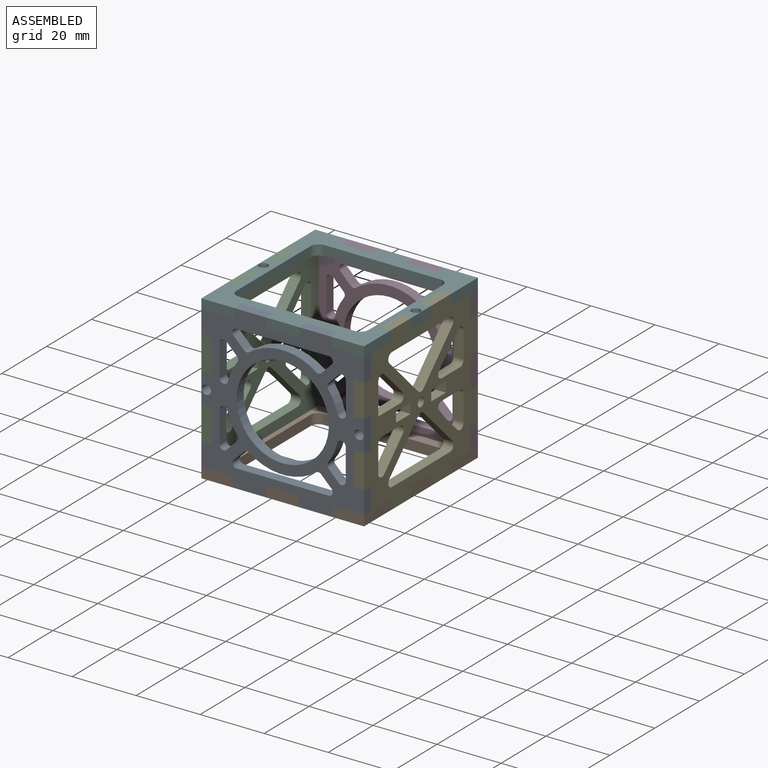
[diagram: assembled view]
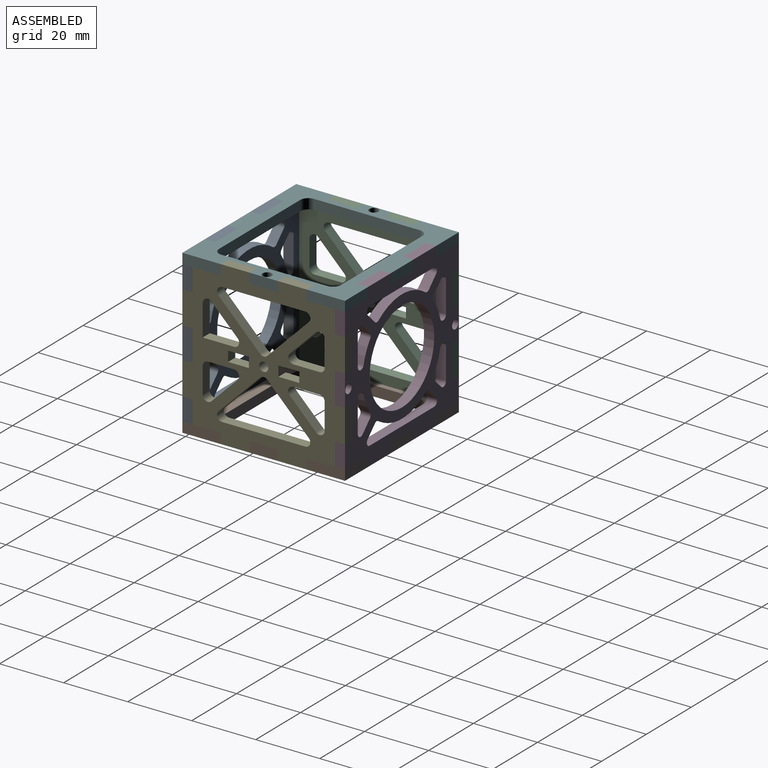
[diagram: assembled view, second angle]
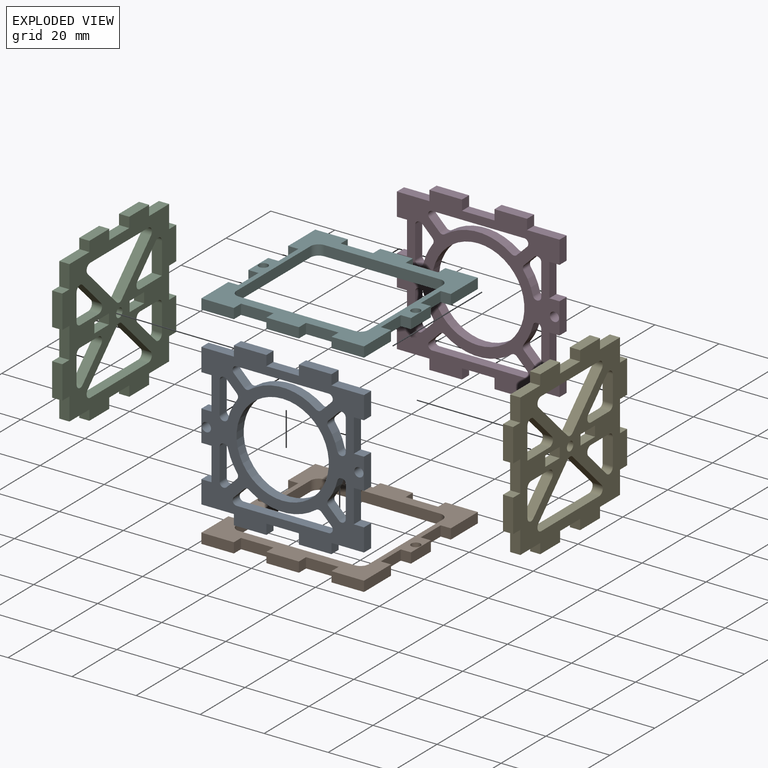
[diagram: exploded view]
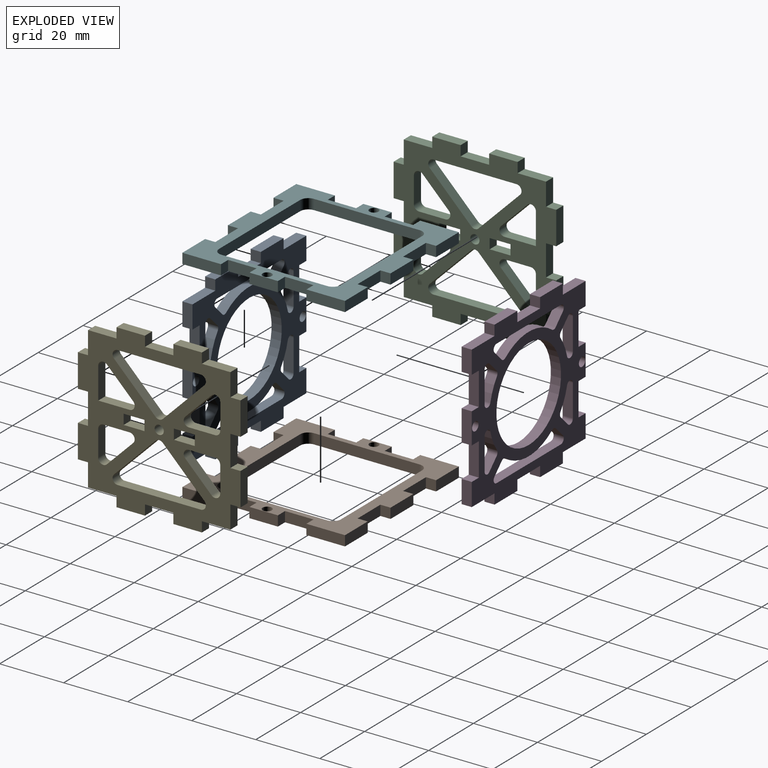
[diagram: exploded view, second angle]
ASSEMBLY  parts=6 mates=5
PART A: 89 faces, bbox 50.8x3.2x50.8 mm
  f0: cylinder r=17.59mm len=6.26mm, axis (0,1,0), area 22.1mm2, adj f63,f64,f82,f87
  f1: plane 3.21x3.21mm, normal (0.71,0,-0.71), area 14.4mm2, adj f63,f64,f82,f83
  f2: plane 9.93x3.18mm, normal (-1,0,0), area 31.5mm2, adj f63,f64,f83,f84
  f3: plane 3.21x3.21mm, normal (-0.71,0,0.71), area 14.4mm2, adj f63,f64,f80,f81
  f4: cylinder r=17.59mm len=20.82mm, axis (0,1,0), area 70.7mm2, adj f63,f64,f78,f81
  f5: plane 3.21x3.21mm, normal (0.71,0,0.71), area 14.4mm2, adj f63,f64,f78,f79
  f6: plane 3.18x0.09mm, normal (0,0,1), area 0.3mm2, adj f63,f64,f75,f86
  f7: plane 9.93x3.18mm, normal (1,0,0), area 31.5mm2, adj f63,f64,f75,f76
  f8: plane 3.21x3.21mm, normal (-0.71,0,-0.71), area 14.4mm2, adj f63,f64,f76,f77
  f9: plane 3.18x0.09mm, normal (0,0,-1), area 0.3mm2, adj f63,f64,f69,f88
  f10: plane 9.93x3.18mm, normal (-1,0,0), area 31.5mm2, adj f63,f64,f69,f70
  f11: plane 3.21x3.21mm, normal (0.71,0,0.71), area 14.4mm2, adj f63,f64,f70,f71
  f12: plane 9.93x3.18mm, normal (1,0,0), area 31.5mm2, adj f63,f64,f67,f68
  f13: plane 3.18x0.09mm, normal (0,0,-1), area 0.3mm2, adj f63,f64,f68,f85
  f14: cylinder r=17.59mm len=6.26mm, axis (0,1,0), area 22.1mm2, adj f63,f64,f66,f85
  f15: plane 3.21x3.21mm, normal (0.71,0,-0.71), area 14.4mm2, adj f63,f64,f65,f74
  f16: cylinder r=17.59mm len=20.82mm, axis (0,1,0), area 70.7mm2, adj f63,f64,f65,f72
  f17: plane 3.21x3.21mm, normal (-0.71,0,-0.71), area 14.4mm2, adj f63,f64,f72,f73
  f18: plane 10.16x3.18mm, normal (0,0,-1), area 32.3mm2, adj f19,f61,f63,f64
  f19: plane 3.18x3.18mm, normal (1,0,0), area 10.1mm2, adj f18,f20,f63,f64
  f20: plane 10.16x3.18mm, normal (0,0,-1), area 32.3mm2, adj f19,f21,f63,f64
  f21: plane 3.18x3.18mm, normal (-1,0,0), area 10.1mm2, adj f20,f22,f63,f64
  f22: plane 10.16x3.18mm, normal (0,0,-1), area 32.3mm2, adj f21,f23,f63,f64
  f23: plane 3.18x3.18mm, normal (1,0,0), area 10.1mm2, adj f22,f24,f63,f64
  f24: plane 10.16x3.18mm, normal (0,0,-1), area 32.3mm2, adj f23,f25,f63,f64
  f25: plane 7.11x3.18mm, normal (1,0,0), area 22.6mm2, adj f24,f26,f63,f64
  f26: plane 3.18x3.18mm, normal (0,0,1), area 10.1mm2, adj f25,f27,f63,f64
  f27: plane 10.29x3.18mm, normal (1,0,0), area 32.7mm2, adj f26,f28,f63,f64
  f28: plane 3.18x3.18mm, normal (0,0,-1), area 10.1mm2, adj f27,f29,f63,f64
  f29: plane 9.65x3.18mm, normal (1,0,0), area 30.6mm2, adj f28,f30,f63,f64
  f30: plane 3.18x3.18mm, normal (0,0,1), area 10.1mm2, adj f29,f31,f63,f64
  f31: plane 10.29x3.18mm, normal (1,0,0), area 32.7mm2, adj f30,f32,f63,f64
  f32: plane 3.18x3.18mm, normal (0,0,-1), area 10.1mm2, adj f31,f33,f63,f64
  f33: plane 7.11x3.18mm, normal (1,0,0), area 22.6mm2, adj f32,f34,f63,f64
  f34: plane 10.16x3.18mm, normal (0,0,1), area 32.3mm2, adj f33,f35,f63,f64
  f35: plane 3.18x3.18mm, normal (1,0,0), area 10.1mm2, adj f34,f36,f63,f64
  f36: plane 10.16x3.18mm, normal (0,0,1), area 32.3mm2, adj f35,f37,f63,f64
  f37: plane 3.18x3.18mm, normal (-1,0,0), area 10.1mm2, adj f36,f38,f63,f64
  f38: plane 10.16x3.18mm, normal (0,0,1), area 32.3mm2, adj f37,f39,f63,f64
  f39: plane 3.18x3.18mm, normal (1,0,0), area 10.1mm2, adj f38,f40,f63,f64
  f40: plane 10.16x3.18mm, normal (0,0,1), area 32.3mm2, adj f39,f41,f63,f64
  f41: plane 3.18x3.18mm, normal (-1,0,0), area 10.1mm2, adj f40,f42,f63,f64
  f42: plane 10.16x3.18mm, normal (0,0,1), area 32.3mm2, adj f41,f43,f63,f64
  f43: plane 7.11x3.18mm, normal (-1,0,0), area 22.6mm2, adj f42,f44,f63,f64
  f44: plane 3.18x3.18mm, normal (0,0,-1), area 10.1mm2, adj f43,f45,f63,f64
  f45: plane 10.29x3.18mm, normal (-1,0,0), area 32.7mm2, adj f44,f46,f63,f64
  f46: plane 3.18x3.18mm, normal (0,0,1), area 10.1mm2, adj f45,f47,f63,f64
  f47: plane 9.65x3.18mm, normal (-1,0,0), area 30.6mm2, adj f46,f48,f63,f64
  f48: plane 3.18x3.18mm, normal (0,0,-1), area 10.1mm2, adj f47,f49,f63,f64
  f49: plane 10.29x3.18mm, normal (-1,0,0), area 32.7mm2, adj f48,f50,f63,f64
  f50: plane 3.18x3.18mm, normal (0,0,1), area 10.1mm2, adj f49,f51,f63,f64
  f51: plane 7.11x3.18mm, normal (-1,0,0), area 22.6mm2, adj f50,f52,f63,f64
  f52: plane 10.16x3.18mm, normal (0,0,-1), area 32.3mm2, adj f51,f61,f63,f64
  f53: cylinder r=14.41mm len=28.83mm, axis (0,1,0), area 287.6mm2, adj f63,f64
  f54: cylinder r=1.43mm len=3.18mm, axis (0,1,0), area 28.5mm2, adj f63,f64
  f55: plane 3.18x0.09mm, normal (0,0,1), area 0.3mm2, adj f63,f64,f84,f87
  f56: plane 28.75x3.18mm, normal (0,0,-1), area 91.3mm2, adj f63,f64,f79,f80
  f57: cylinder r=17.59mm len=6.26mm, axis (0,1,0), area 22.1mm2, adj f63,f64,f77,f86
  f58: cylinder r=17.59mm len=6.26mm, axis (0,1,0), area 22.1mm2, adj f63,f64,f71,f88
  f59: plane 3.21x3.21mm, normal (-0.71,0,0.71), area 14.4mm2, adj f63,f64,f66,f67
  f60: plane 28.75x3.18mm, normal (0,0,1), area 91.3mm2, adj f63,f64,f73,f74
  f61: plane 3.18x3.18mm, normal (-1,0,0), area 10.1mm2, adj f18,f52,f63,f64
  f62: cylinder r=1.43mm len=3.18mm, axis (0,1,0), area 28.5mm2, adj f63,f64
  f63: plane 50.8x50.8mm, normal (0,-1,0), area 1181mm2, adj f0,f1,f2,f3,f4,f5,f6,f7
  f64: plane 50.8x50.8mm, normal (0,1,0), area 1181mm2, adj f0,f1,f2,f3,f4,f5,f6,f7
  f65: cylinder r=1.27mm len=3.18mm, axis (0,1,0), area 5.7mm2, adj f15,f16,f63,f64
  f66: cylinder r=1.27mm len=3.18mm, axis (0,1,0), area 5.7mm2, adj f14,f59,f63,f64
  f67: cylinder r=1.27mm len=3.18mm, axis (0,-1,0), area 9.5mm2, adj f12,f59,f63,f64
  f68: cylinder r=1.27mm len=3.18mm, axis (0,1,0), area 6.3mm2, adj f12,f13,f63,f64
  f69: cylinder r=1.27mm len=3.18mm, axis (0,-1,0), area 6.3mm2, adj f9,f10,f63,f64
  f70: cylinder r=1.27mm len=3.18mm, axis (0,-1,0), area 9.5mm2, adj f10,f11,f63,f64
  f71: cylinder r=1.27mm len=3.18mm, axis (0,1,0), area 5.7mm2, adj f11,f58,f63,f64
  f72: cylinder r=1.27mm len=3.18mm, axis (0,1,0), area 5.7mm2, adj f16,f17,f63,f64
  f73: cylinder r=1.27mm len=3.18mm, axis (0,-1,0), area 9.5mm2, adj f17,f60,f63,f64
  f74: cylinder r=1.27mm len=3.18mm, axis (0,-1,0), area 9.5mm2, adj f15,f60,f63,f64
  f75: cylinder r=1.27mm len=3.18mm, axis (0,-1,0), area 6.3mm2, adj f6,f7,f63,f64
  f76: cylinder r=1.27mm len=3.18mm, axis (0,-1,0), area 9.5mm2, adj f7,f8,f63,f64
  f77: cylinder r=1.27mm len=3.18mm, axis (0,1,0), area 5.7mm2, adj f8,f57,f63,f64
  f78: cylinder r=1.27mm len=3.18mm, axis (0,1,0), area 5.7mm2, adj f4,f5,f63,f64
  f79: cylinder r=1.27mm len=3.18mm, axis (0,-1,0), area 9.5mm2, adj f5,f56,f63,f64
  f80: cylinder r=1.27mm len=3.18mm, axis (0,-1,0), area 9.5mm2, adj f3,f56,f63,f64
  f81: cylinder r=1.27mm len=3.18mm, axis (0,1,0), area 5.7mm2, adj f3,f4,f63,f64
  f82: cylinder r=1.27mm len=3.18mm, axis (0,1,0), area 5.7mm2, adj f0,f1,f63,f64
  f83: cylinder r=1.27mm len=3.18mm, axis (0,-1,0), area 9.5mm2, adj f1,f2,f63,f64
  f84: cylinder r=1.27mm len=3.18mm, axis (0,1,0), area 6.3mm2, adj f2,f55,f63,f64
  f85: cylinder r=1.27mm len=3.18mm, axis (0,1,0), area 5.4mm2, adj f13,f14,f63,f64
  f86: cylinder r=1.27mm len=3.18mm, axis (0,1,0), area 5.4mm2, adj f6,f57,f63,f64
  f87: cylinder r=1.27mm len=3.18mm, axis (0,1,0), area 5.4mm2, adj f0,f55,f63,f64
  f88: cylinder r=1.27mm len=3.18mm, axis (0,1,0), area 5.4mm2, adj f9,f58,f63,f64
PART B: 48 faces, bbox 50.8x50.8x3.2 mm
  f0: plane 36.2x3.18mm, normal (0,-1,0), area 114.9mm2, adj f42,f43,f44,f47
  f1: plane 33.02x3.18mm, normal (-1,0,0), area 104.8mm2, adj f42,f43,f44,f45
  f2: plane 36.2x3.18mm, normal (0,1,0), area 114.9mm2, adj f42,f43,f45,f46
  f3: plane 10.16x3.18mm, normal (0,1,0), area 32.3mm2, adj f4,f40,f42,f43
  f4: plane 12.07x3.18mm, normal (-1,0,0), area 38.3mm2, adj f3,f5,f42,f43
  f5: plane 3.18x3.18mm, normal (0,-1,0), area 10.1mm2, adj f4,f6,f42,f43
  f6: plane 8.89x3.18mm, normal (-1,0,0), area 28.2mm2, adj f5,f7,f42,f43
  f7: plane 3.18x3.18mm, normal (0,1,0), area 10.1mm2, adj f6,f8,f42,f43
  f8: plane 8.89x3.18mm, normal (-1,0,0), area 28.2mm2, adj f7,f9,f42,f43
  f9: plane 3.18x3.18mm, normal (0,-1,0), area 10.1mm2, adj f8,f10,f42,f43
  f10: plane 8.89x3.18mm, normal (-1,0,0), area 28.2mm2, adj f9,f11,f42,f43
  f11: plane 3.18x3.18mm, normal (0,1,0), area 10.1mm2, adj f10,f12,f42,f43
  f12: plane 12.07x3.18mm, normal (-1,0,0), area 38.3mm2, adj f11,f13,f42,f43
  f13: plane 10.16x3.18mm, normal (0,-1,0), area 32.3mm2, adj f12,f14,f42,f43
  f14: plane 3.18x3.18mm, normal (1,0,0), area 10.1mm2, adj f13,f15,f42,f43
  f15: plane 10.16x3.18mm, normal (0,-1,0), area 32.3mm2, adj f14,f16,f42,f43
  f16: plane 3.18x3.18mm, normal (-1,0,0), area 10.1mm2, adj f15,f17,f42,f43
  f17: plane 10.16x3.18mm, normal (0,-1,0), area 32.3mm2, adj f16,f18,f42,f43
  f18: plane 3.18x3.18mm, normal (1,0,0), area 10.1mm2, adj f17,f19,f42,f43
  f19: plane 10.16x3.18mm, normal (0,-1,0), area 32.3mm2, adj f18,f20,f42,f43
  f20: plane 3.18x3.18mm, normal (-1,0,0), area 10.1mm2, adj f19,f21,f42,f43
  f21: plane 10.16x3.18mm, normal (0,-1,0), area 32.3mm2, adj f20,f22,f42,f43
  f22: plane 12.07x3.18mm, normal (1,0,0), area 38.3mm2, adj f21,f23,f42,f43
  f23: plane 3.18x3.18mm, normal (0,1,0), area 10.1mm2, adj f22,f24,f42,f43
  f24: plane 8.89x3.18mm, normal (1,0,0), area 28.2mm2, adj f23,f25,f42,f43
  f25: plane 3.18x3.18mm, normal (0,-1,0), area 10.1mm2, adj f24,f26,f42,f43
  f26: plane 8.89x3.18mm, normal (1,0,0), area 28.2mm2, adj f25,f27,f42,f43
  f27: plane 3.18x3.18mm, normal (0,1,0), area 10.1mm2, adj f26,f28,f42,f43
  f28: plane 8.89x3.18mm, normal (1,0,0), area 28.2mm2, adj f27,f29,f42,f43
  f29: plane 3.18x3.18mm, normal (0,-1,0), area 10.1mm2, adj f28,f30,f42,f43
  f30: plane 12.07x3.18mm, normal (1,0,0), area 38.3mm2, adj f29,f31,f42,f43
  f31: plane 10.16x3.18mm, normal (0,1,0), area 32.3mm2, adj f30,f32,f42,f43
  f32: plane 3.18x3.18mm, normal (-1,0,0), area 10.1mm2, adj f31,f33,f42,f43
  f33: plane 10.16x3.18mm, normal (0,1,0), area 32.3mm2, adj f32,f34,f42,f43
  f34: plane 3.18x3.18mm, normal (1,0,0), area 10.1mm2, adj f33,f35,f42,f43
  f35: plane 10.16x3.18mm, normal (0,1,0), area 32.3mm2, adj f34,f36,f42,f43
  f36: plane 3.18x3.18mm, normal (-1,0,0), area 10.1mm2, adj f35,f37,f42,f43
  f37: plane 10.16x3.18mm, normal (0,1,0), area 32.3mm2, adj f36,f40,f42,f43
  f38: plane 33.02x3.18mm, normal (1,0,0), area 104.8mm2, adj f42,f43,f46,f47
  f39: cylinder r=1.43mm len=3.18mm, axis (0,0,-1), area 28.5mm2, adj f42,f43
  f40: plane 3.18x3.18mm, normal (1,0,0), area 10.1mm2, adj f3,f37,f42,f43
  f41: cylinder r=1.43mm len=3.18mm, axis (0,0,-1), area 28.5mm2, adj f42,f43
  f42: plane 50.8x50.8mm, normal (0,0,1), area 758.8mm2, adj f0,f1,f2,f3,f4,f5,f6,f7
  f43: plane 50.8x50.8mm, normal (0,0,-1), area 758.8mm2, adj f0,f1,f2,f3,f4,f5,f6,f7
  f44: cylinder r=2.54mm len=3.18mm, axis (0,0,-1), area 12.7mm2, adj f0,f1,f42,f43
  f45: cylinder r=2.54mm len=3.18mm, axis (0,0,1), area 12.7mm2, adj f1,f2,f42,f43
  f46: cylinder r=2.54mm len=3.18mm, axis (0,0,-1), area 12.7mm2, adj f2,f38,f42,f43
  f47: cylinder r=2.54mm len=3.18mm, axis (0,0,1), area 12.7mm2, adj f0,f38,f42,f43
PART C: 82 faces, bbox 3.2x50.8x50.8 mm
  f0: plane 3.18x3.18mm, normal (0,1,0), area 10.1mm2, adj f1,f62,f63,f64
  f1: plane 6.51x3.18mm, normal (0,0,-1), area 20.7mm2, adj f0,f2,f63,f64
  f2: plane 3.18x3.18mm, normal (0,-1,0), area 10.1mm2, adj f1,f62,f63,f64
  f3: plane 8.21x8.21mm, normal (0,0.71,-0.71), area 36.9mm2, adj f63,f64,f80,f81
  f4: plane 9.8x3.18mm, normal (0,-1,0), area 31.1mm2, adj f53,f63,f64,f80
  f5: plane 8.21x3.18mm, normal (0,0,-1), area 26.1mm2, adj f63,f64,f77,f79
  f6: plane 8.21x8.21mm, normal (0,-0.71,0.71), area 36.9mm2, adj f63,f64,f77,f78
  f7: plane 12.97x12.97mm, normal (0,-0.71,0.71), area 58.2mm2, adj f63,f64,f74,f76
  f8: plane 12.97x12.97mm, normal (0,0.71,0.71), area 58.2mm2, adj f63,f64,f74,f75
  f9: plane 12.97x12.97mm, normal (0,-0.71,-0.71), area 58.2mm2, adj f63,f64,f71,f73
  f10: plane 25.94x3.18mm, normal (0,0,1), area 82.4mm2, adj f63,f64,f71,f72
  f11: plane 8.21x3.18mm, normal (0,-1,0), area 26.1mm2, adj f63,f64,f68,f70
  f12: plane 8.21x8.21mm, normal (0,0.71,0.71), area 36.9mm2, adj f63,f64,f68,f69
  f13: plane 8.21x3.18mm, normal (0,1,0), area 26.1mm2, adj f63,f64,f65,f67
  f14: plane 8.21x8.21mm, normal (0,-0.71,-0.71), area 36.9mm2, adj f63,f64,f65,f66
  f15: plane 6.51x3.18mm, normal (0,0,-1), area 20.7mm2, adj f16,f60,f63,f64
  f16: plane 3.18x3.18mm, normal (0,-1,0), area 10.1mm2, adj f15,f17,f63,f64
  f17: plane 6.51x3.18mm, normal (0,0,1), area 20.7mm2, adj f16,f60,f63,f64
  f18: plane 3.18x3.18mm, normal (0,1,0), area 10.1mm2, adj f19,f61,f63,f64
  f19: plane 8.89x3.18mm, normal (0,0,-1), area 28.2mm2, adj f18,f20,f63,f64
  f20: plane 7.11x3.18mm, normal (0,1,0), area 22.6mm2, adj f19,f21,f63,f64
  f21: plane 3.18x3.18mm, normal (0,0,-1), area 10.1mm2, adj f20,f22,f63,f64
  f22: plane 10.29x3.18mm, normal (0,1,0), area 32.7mm2, adj f21,f23,f63,f64
  f23: plane 3.18x3.18mm, normal (0,0,1), area 10.1mm2, adj f22,f24,f63,f64
  f24: plane 9.65x3.18mm, normal (0,1,0), area 30.6mm2, adj f23,f25,f63,f64
  f25: plane 3.18x3.18mm, normal (0,0,-1), area 10.1mm2, adj f24,f26,f63,f64
  f26: plane 10.29x3.18mm, normal (0,1,0), area 32.7mm2, adj f25,f27,f63,f64
  f27: plane 3.18x3.18mm, normal (0,0,1), area 10.1mm2, adj f26,f28,f63,f64
  f28: plane 7.11x3.18mm, normal (0,1,0), area 22.6mm2, adj f27,f29,f63,f64
  f29: plane 8.89x3.18mm, normal (0,0,1), area 28.2mm2, adj f28,f30,f63,f64
  f30: plane 3.18x3.18mm, normal (0,1,0), area 10.1mm2, adj f29,f31,f63,f64
  f31: plane 8.89x3.18mm, normal (0,0,1), area 28.2mm2, adj f30,f32,f63,f64
  f32: plane 3.18x3.18mm, normal (0,-1,0), area 10.1mm2, adj f31,f33,f63,f64
  f33: plane 8.89x3.18mm, normal (0,0,1), area 28.2mm2, adj f32,f34,f63,f64
  f34: plane 3.18x3.18mm, normal (0,1,0), area 10.1mm2, adj f33,f35,f63,f64
  f35: plane 8.89x3.18mm, normal (0,0,1), area 28.2mm2, adj f34,f36,f63,f64
  f36: plane 3.18x3.18mm, normal (0,-1,0), area 10.1mm2, adj f35,f37,f63,f64
  f37: plane 8.89x3.18mm, normal (0,0,1), area 28.2mm2, adj f36,f38,f63,f64
  f38: plane 7.11x3.18mm, normal (0,-1,0), area 22.6mm2, adj f37,f39,f63,f64
  f39: plane 3.18x3.18mm, normal (0,0,1), area 10.1mm2, adj f38,f40,f63,f64
  f40: plane 10.29x3.18mm, normal (0,-1,0), area 32.7mm2, adj f39,f41,f63,f64
  f41: plane 3.18x3.18mm, normal (0,0,-1), area 10.1mm2, adj f40,f42,f63,f64
  f42: plane 9.65x3.18mm, normal (0,-1,0), area 30.6mm2, adj f41,f43,f63,f64
  f43: plane 3.18x3.18mm, normal (0,0,1), area 10.1mm2, adj f42,f44,f63,f64
  f44: plane 10.29x3.18mm, normal (0,-1,0), area 32.7mm2, adj f43,f45,f63,f64
  f45: plane 3.18x3.18mm, normal (0,0,-1), area 10.1mm2, adj f44,f46,f63,f64
  f46: plane 7.11x3.18mm, normal (0,-1,0), area 22.6mm2, adj f45,f47,f63,f64
  f47: plane 8.89x3.18mm, normal (0,0,-1), area 28.2mm2, adj f46,f48,f63,f64
  f48: plane 3.18x3.18mm, normal (0,-1,0), area 10.1mm2, adj f47,f49,f63,f64
  f49: plane 8.89x3.18mm, normal (0,0,-1), area 28.2mm2, adj f48,f50,f63,f64
  f50: plane 3.18x3.18mm, normal (0,1,0), area 10.1mm2, adj f49,f51,f63,f64
  f51: plane 8.89x3.18mm, normal (0,0,-1), area 28.2mm2, adj f50,f52,f63,f64
  f52: plane 3.18x3.18mm, normal (0,-1,0), area 10.1mm2, adj f51,f61,f63,f64
  f53: plane 9.8x3.18mm, normal (0,0,1), area 31.1mm2, adj f4,f63,f64,f81
  f54: plane 8.21x3.18mm, normal (0,1,0), area 26.1mm2, adj f63,f64,f78,f79
  f55: plane 25.94x3.18mm, normal (0,0,-1), area 82.4mm2, adj f63,f64,f75,f76
  f56: cylinder r=1.43mm len=3.18mm, axis (-1,0,0), area 28.5mm2, adj f63,f64
  f57: plane 12.97x12.97mm, normal (0,0.71,-0.71), area 58.2mm2, adj f63,f64,f72,f73
  f58: plane 8.21x3.18mm, normal (0,0,-1), area 26.1mm2, adj f63,f64,f69,f70
  f59: plane 8.21x3.18mm, normal (0,0,1), area 26.1mm2, adj f63,f64,f66,f67
  f60: plane 3.18x3.18mm, normal (0,1,0), area 10.1mm2, adj f15,f17,f63,f64
  f61: plane 8.89x3.18mm, normal (0,0,-1), area 28.2mm2, adj f18,f52,f63,f64
  f62: plane 6.51x3.18mm, normal (0,0,1), area 20.7mm2, adj f0,f2,f63,f64
  f63: plane 50.8x50.8mm, normal (1,0,0), area 1275.3mm2, adj f0,f1,f2,f3,f4,f5,f6,f7
  f64: plane 50.8x50.8mm, normal (-1,0,0), area 1275.3mm2, adj f0,f1,f2,f3,f4,f5,f6,f7
  f65: cylinder r=1.59mm len=3.18mm, axis (1,0,0), area 11.9mm2, adj f13,f14,f63,f64
  f66: cylinder r=1.59mm len=3.18mm, axis (1,0,0), area 11.9mm2, adj f14,f59,f63,f64
  f67: cylinder r=1.59mm len=3.18mm, axis (1,0,0), area 7.9mm2, adj f13,f59,f63,f64
  f68: cylinder r=1.59mm len=3.18mm, axis (1,0,0), area 11.9mm2, adj f11,f12,f63,f64
  f69: cylinder r=1.59mm len=3.18mm, axis (1,0,0), area 11.9mm2, adj f12,f58,f63,f64
  f70: cylinder r=1.59mm len=3.18mm, axis (1,0,0), area 7.9mm2, adj f11,f58,f63,f64
  f71: cylinder r=1.59mm len=3.18mm, axis (1,0,0), area 11.9mm2, adj f9,f10,f63,f64
  f72: cylinder r=1.59mm len=3.18mm, axis (1,0,0), area 11.9mm2, adj f10,f57,f63,f64
  f73: cylinder r=1.59mm len=3.18mm, axis (1,0,0), area 7.9mm2, adj f9,f57,f63,f64
  f74: cylinder r=1.59mm len=3.18mm, axis (1,0,0), area 7.9mm2, adj f7,f8,f63,f64
  f75: cylinder r=1.59mm len=3.18mm, axis (1,0,0), area 11.9mm2, adj f8,f55,f63,f64
  f76: cylinder r=1.59mm len=3.18mm, axis (1,0,0), area 11.9mm2, adj f7,f55,f63,f64
  f77: cylinder r=1.59mm len=3.18mm, axis (1,0,0), area 11.9mm2, adj f5,f6,f63,f64
  f78: cylinder r=1.59mm len=3.18mm, axis (1,0,0), area 11.9mm2, adj f6,f54,f63,f64
  f79: cylinder r=1.59mm len=3.18mm, axis (1,0,0), area 7.9mm2, adj f5,f54,f63,f64
  f80: cylinder r=1.59mm len=3.18mm, axis (1,0,0), area 11.9mm2, adj f3,f4,f63,f64
  f81: cylinder r=1.59mm len=3.18mm, axis (1,0,0), area 11.9mm2, adj f3,f53,f63,f64
PART D: same geometry as A
PART E: same geometry as C
PART F: same geometry as B
PLACE A t=(-11.96,7.87,28.31)mm
PLACE B t=(-11.96,7.87,28.31)mm
PLACE C t=(-59.58,7.87,28.31)mm
PLACE D rot(axis=(0,0,1),180deg) t=(-11.96,7.87,28.31)mm
PLACE E rot(axis=(0,0,1),180deg) t=(35.67,7.87,28.31)mm
PLACE F t=(-11.96,7.87,75.93)mm
MATE fastened B.f42 <-> A.f20  axis (0,0,1) through (-11.96,-17.53,31.48)mm
MATE fastened F.f43 <-> A.f38  axis (0,0,-1) through (-11.96,-17.53,75.93)mm
MATE fastened C.f64 <-> B.f8  axis (-1,0,0) through (-37.36,7.87,31.48)mm
MATE fastened E.f64 <-> F.f26  axis (1,0,0) through (13.44,7.87,75.93)mm
MATE fastened D.f63 <-> F.f35  axis (0,1,0) through (-11.96,33.27,75.93)mm
